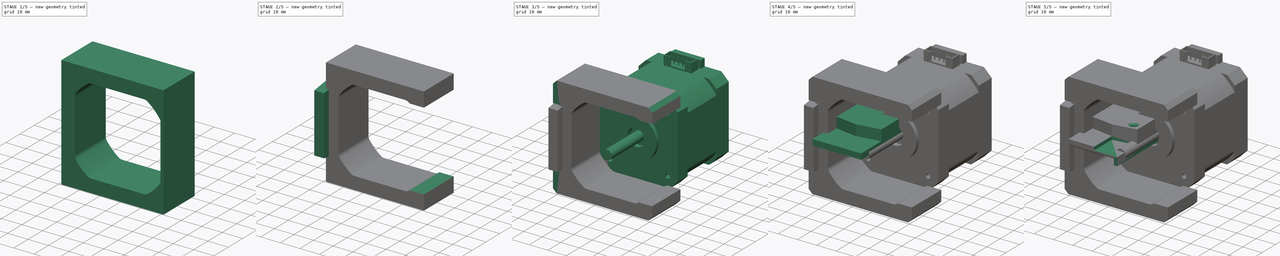
[diagram: build sequence overview — one tinted view per stage of 5, left to right]
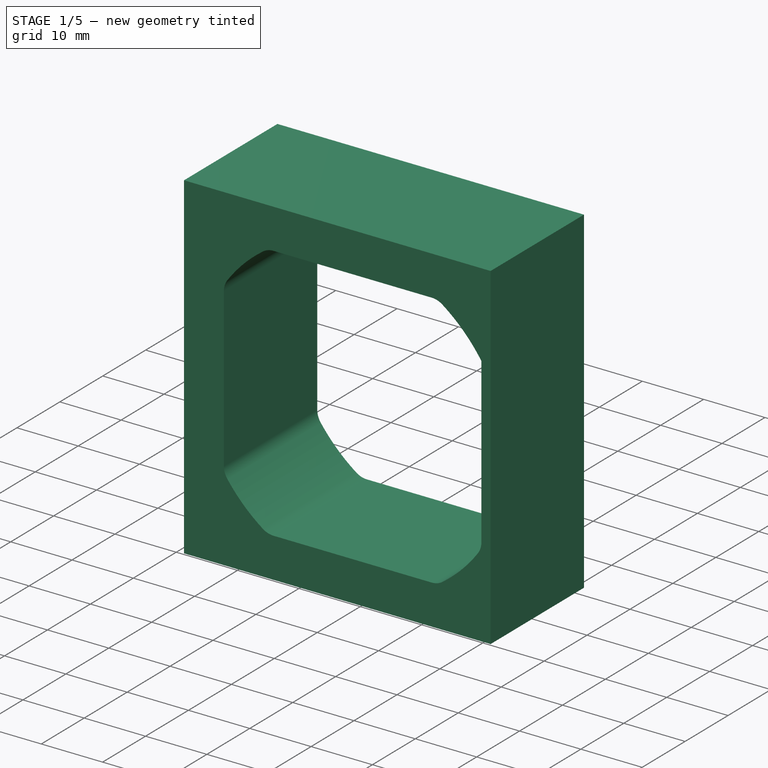
[diagram: stage 1 of 5 — iso view after this stage's code; geometry added in this stage tinted green]
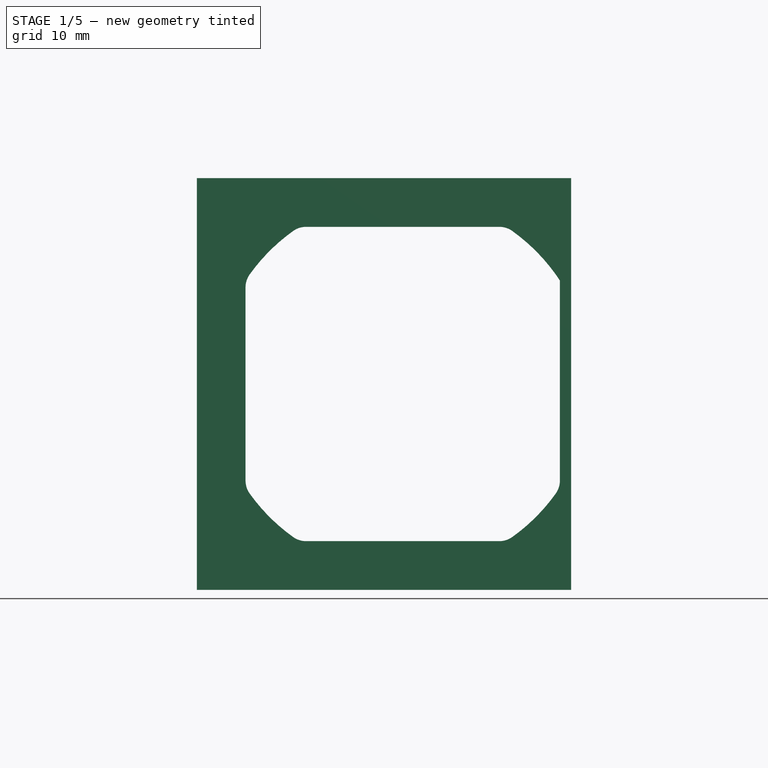
[diagram: stage 1 of 5 — front view after this stage's code; geometry added in this stage tinted green]
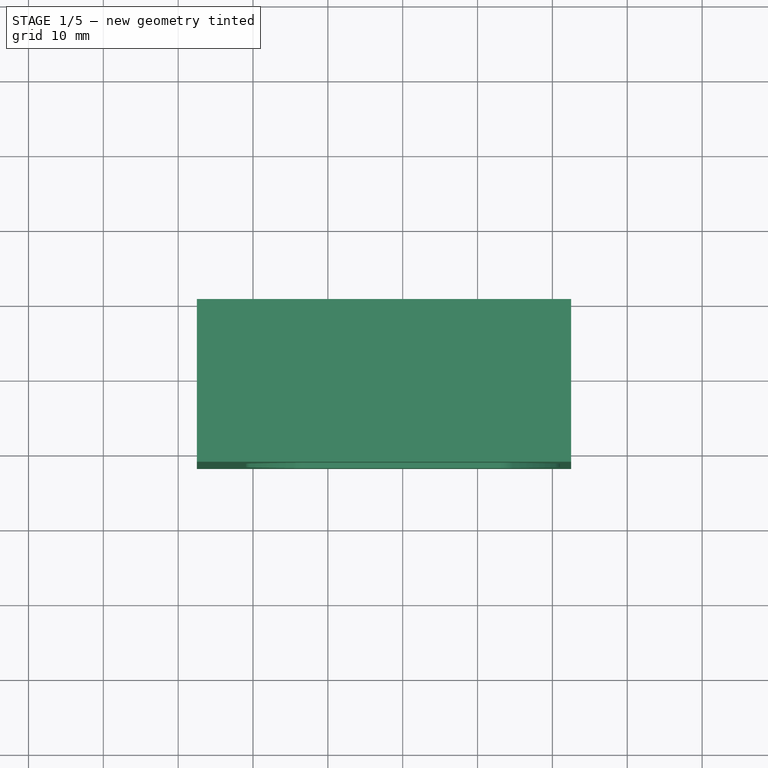
[diagram: stage 1 of 5 — top view after this stage's code; geometry added in this stage tinted green]
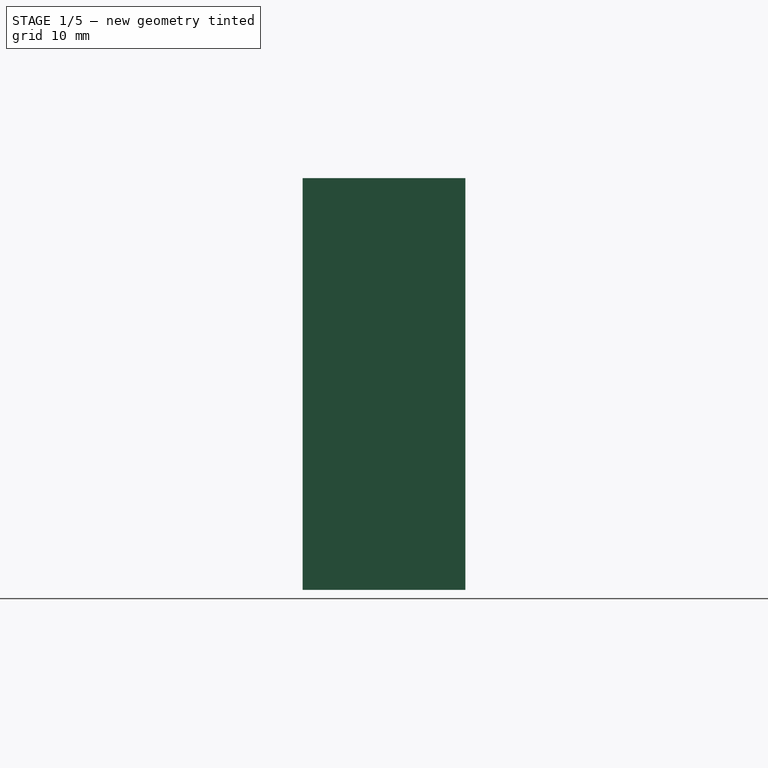
[diagram: stage 1 of 5 — right view after this stage's code; geometry added in this stage tinted green]
FCSTD DOCUMENT  (FreeCAD 1.1R44555 (Git))
Label: ender 3 v1 direct drive kusba
License: All rights reserved
LicenseURL: https://en.wikipedia.org/wiki/All_rights_reserved
objects: Sketcher::SketchObject×10, PartDesign::Pad×7, PartDesign::Pocket×5, Part::FeaturePython×5, PartDesign::Chamfer×4, Part::Feature×3, PartDesign::ShapeBinder×2, PartDesign::Body×2, App::Point×2, Part::Box×2, PartDesign::SubShapeBinder×2, App::DocumentObjectGroup×1
note: 84 computed .brp shape members not serialized (recipe doc carries the construction recipe); baked Part::Feature solids carry a one-line shape summary decoded from their .brp

FEATURE [App::DocumentObjectGroup] GrExplode_Slice  label="Exploded Slice"
  Group = -> [Slice_child0,Slice_child1]
FEATURE [Part::Feature] Part__Feature001  label="SimpleBed001"
  Placement = pos=(-27.5,-1.975,6.1e-15) rot=(0.57735,0.57735,-0.57735;4.18879rad)
  shape: bbox 11.5 x 25.23 x 60 mm, 29 faces (baked)
FEATURE [PartDesign::SubShapeBinder] Binder001
  BindCopyOnChange = 0
  BindMode = 0
  ClaimChildren = false
  Context = -> Body004 [Binder001.]
  Fuse = false
  MakeFace = true
  OffsetFill = false
  OffsetIntersection = false
  OffsetJoinType = 0
  OffsetOpenResult = false
  PartialLoad = false
  Placement = pos=(10,-0.025,0) rot=(0,0,1;0rad)
  Refine = true
  Relative = true
  Support = -> [Part__Feature001[Face1]]
  _Version = 2
FEATURE [Sketcher::SketchObject] Sketch002
  ArcFitTolerance = 1e-06
  ExternalTypes = [0,0]
  FullyConstrained = false
  MakeInternals = false
  MapMode = 5
  Placement = pos=(-31,-6.9e-15,3.4e-15) rot=(0.57735,-0.57735,-0.57735;2.0944rad)
  sketch-geometry (8):
    g0: LineSegment StartX=0.665674 StartY=14.6086 StartZ=0 EndX=0.665674 EndY=9.04659 EndZ=0
    g1: LineSegment StartX=0.665674 StartY=9.04659 StartZ=0 EndX=7.47092 EndY=9.04659 EndZ=0
    g2: LineSegment StartX=7.47092 StartY=9.04659 StartZ=0 EndX=7.47092 EndY=14.6086 EndZ=0
    g3: LineSegment StartX=7.47092 StartY=14.6086 StartZ=0 EndX=0.665674 EndY=14.6086 EndZ=0
    g4: LineSegment StartX=0.73111 StartY=-9.07892 StartZ=0 EndX=0.73111 EndY=-14.51 EndZ=0
    g5: LineSegment StartX=0.73111 StartY=-14.51 StartZ=0 EndX=7.47092 EndY=-14.51 EndZ=0
    g6: LineSegment StartX=7.47092 StartY=-14.51 StartZ=0 EndX=7.47092 EndY=-9.07892 EndZ=0
    g7: LineSegment StartX=7.47092 StartY=-9.07892 StartZ=0 EndX=0.73111 EndY=-9.07892 EndZ=0
  constraints (16):
    c: Coincident(g0,g1)
    c: Coincident(g1,g2)
    c: Coincident(g2,g3)
    c: Coincident(g3,g0)
    c: Vertical(g0)
    c: Vertical(g2)
    c: Horizontal(g1)
    c: Horizontal(g3)
    c: Coincident(g4,g5)
    c: Coincident(g5,g6)
    c: Coincident(g6,g7)
    c: Coincident(g7,g4)
    c: Vertical(g4)
    c: Vertical(g6)
    c: Horizontal(g5)
    c: Horizontal(g7)
FEATURE [Part::Feature] Part__Feature002  label="NEMA17 42-001"
  shape: bbox 42 x 63.75 x 47.08 mm, 266 faces (baked)
FEATURE [Part::Box] Box001  label="Cube001"
  AttacherType = Attacher::AttachEngine3D
  Height = 45
  Length = 45
  Placement = pos=(-22.1,-25.5,-22.7) rot=(0,0,1;0rad)
  Width = 45
FEATURE [Part::FeaturePython] Slice001  # WARN: FeaturePython — macro-defined, semantics opaque (R4)
  Base = -> Part__Feature002
  Mode = 1
  Tolerance = 0
  Tools = -> [Box001]
FEATURE [Part::FeaturePython] Slice_child001  label="Slice.001"  # WARN: FeaturePython — macro-defined, semantics opaque (R4)
  Base = -> Slice001
  FilterType = 1
  Invert = false
  OverrideMaxVal = 0
  WindowFrom = 80
  WindowTo = 100
  items = 0
FEATURE [PartDesign::SubShapeBinder] Binder
  BindCopyOnChange = 0
  BindMode = 0
  ClaimChildren = false
  Context = -> Body004 [Binder.]
  Fuse = false
  MakeFace = true
  OffsetFill = false
  OffsetIntersection = false
  OffsetJoinType = 0
  OffsetOpenResult = false
  PartialLoad = false
  Refine = true
  Relative = true
  Support = -> [Slice_child001[Face48]]
  _Version = 2
FEATURE [App::Point] Origin008
  Role = Origin
FEATURE [Sketcher::SketchObject] Sketch036
  ArcFitTolerance = 1e-06
  AttachmentSupport = -> [Origin009]
  ExternalTypes = [0,0,0,0,0,0,0,0,0,0,0,0,0,0,0,0]
  FullyConstrained = true
  MakeInternals = false
  MapMode = 5
  Placement = pos=(0,0,0) rot=(1,0,0;1.5708rad)
  sketch-geometry (4):
    g0: LineSegment StartX=-27.5 StartY=27.5 StartZ=0 EndX=-27.5 EndY=-27.5 EndZ=0
    g1: LineSegment StartX=-27.5 StartY=-27.5 StartZ=0 EndX=22.5 EndY=-27.5 EndZ=0
    g2: LineSegment StartX=22.5 StartY=-27.5 StartZ=0 EndX=22.5 EndY=27.5 EndZ=0
    g3: LineSegment StartX=22.5 StartY=27.5 StartZ=0 EndX=-27.5 EndY=27.5 EndZ=0
  constraints (11):
    c: Coincident(g0,g1)
    c: Coincident(g1,g2)
    c: Coincident(g2,g3)
    c: Coincident(g3,g0)
    c: Vertical(g2)
    c: Horizontal(g1)
    c: Horizontal(g3)
    c: DistanceX(g1,g1) = 50
    c: DistanceY(g2,g2) = 55
    c: Symmetric(g0,g0,g-1)
    c: DistanceX(g0,g-1) = 27.5
FEATURE [PartDesign::Pad] Pad011
  Direction = (0,-1,2e-16)
  Length = 21.75
  Length2 = 10
  Profile = -> Sketch036
  ReferenceAxis = -> Sketch036 [N_Axis]
  Refine = true
  SideType = 0
  Suppressed = false
  Type = 0
  Type2 = 0
FEATURE [PartDesign::Pocket] Pocket009
  BaseFeature = -> Pad011
  Direction = (0,-1,0)
  Length = 5
  Length2 = 5
  Profile = -> Binder
  Refine = true
  SideType = 0
  Suppressed = false
  Type = 1
  Type2 = 0
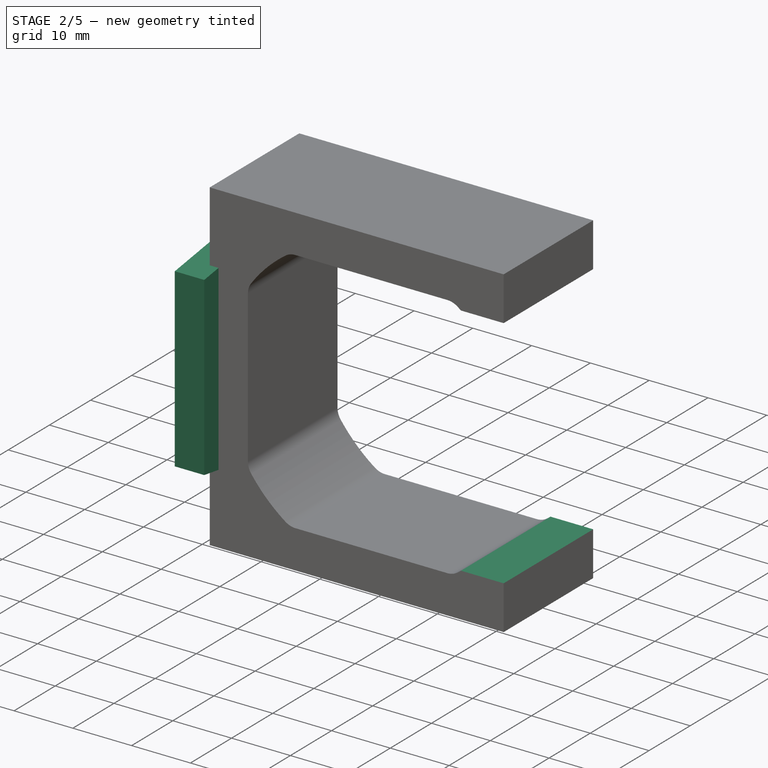
[diagram: stage 2 of 5 — iso view after this stage's code; geometry added in this stage tinted green]
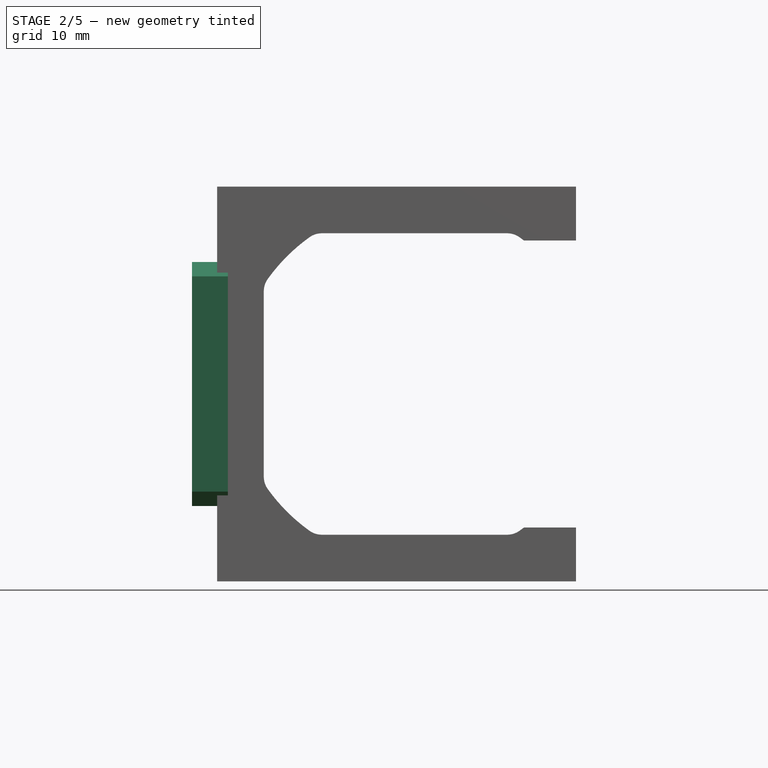
[diagram: stage 2 of 5 — front view after this stage's code; geometry added in this stage tinted green]
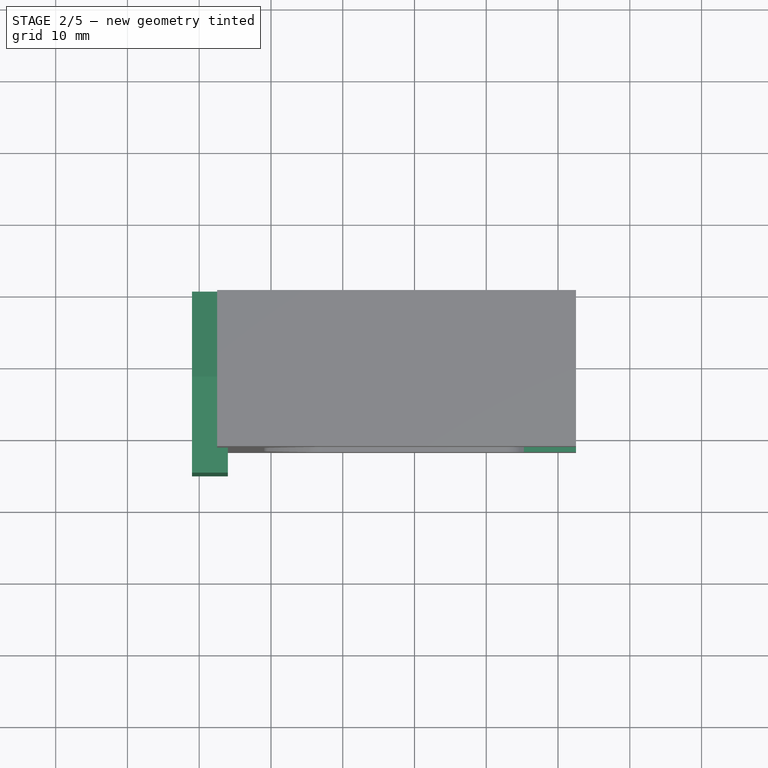
[diagram: stage 2 of 5 — top view after this stage's code; geometry added in this stage tinted green]
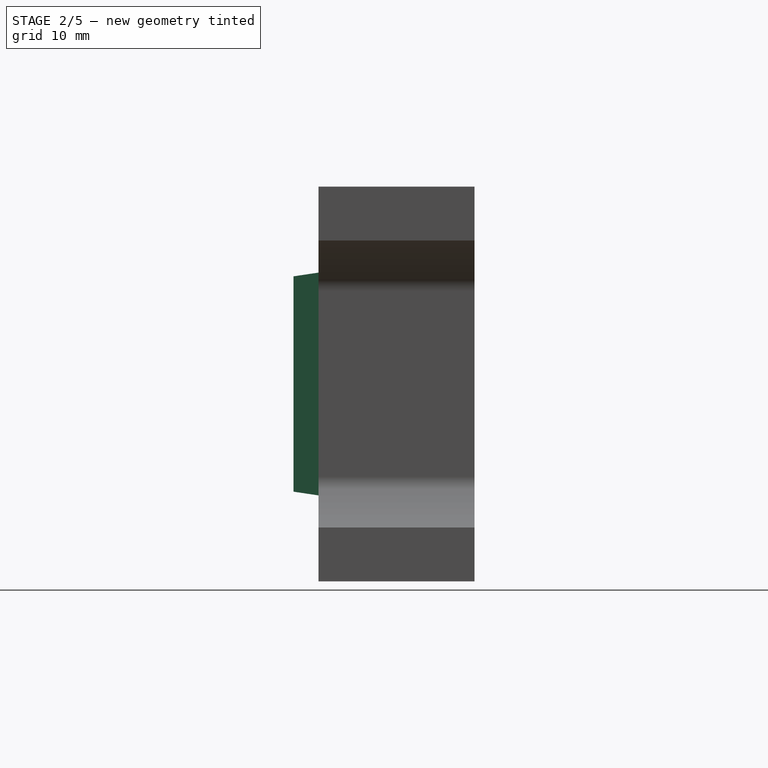
[diagram: stage 2 of 5 — right view after this stage's code; geometry added in this stage tinted green]
FEATURE [Sketcher::SketchObject] Sketch001
  ArcFitTolerance = 1e-06
  AttachmentSupport = -> [Pocket009]
  ExternalGeometry = -> [Pocket009]
  ExternalTypes = [0,0]
  FullyConstrained = false
  MakeInternals = false
  MapMode = 5
  Placement = pos=(0,0,0) rot=(0,0.707107,0.707107;3.14159rad)
  sketch-geometry (4):
    g0: LineSegment StartX=-22.5 StartY=20 StartZ=0 EndX=-22.5 EndY=-20 EndZ=0
    g1: LineSegment StartX=-22.5 StartY=-20 StartZ=0 EndX=-12.719 EndY=-20 EndZ=0
    g2: LineSegment StartX=-12.719 StartY=-20 StartZ=0 EndX=-12.719 EndY=20 EndZ=0
    g3: LineSegment StartX=-12.719 StartY=20 StartZ=0 EndX=-22.5 EndY=20 EndZ=0
  constraints (11):
    c: Coincident(g0,g1)
    c: Coincident(g1,g2)
    c: Coincident(g2,g3)
    c: Coincident(g3,g0)
    c: Vertical(g0)
    c: Vertical(g2)
    c: Horizontal(g1)
    c: Horizontal(g3)
    c: PointOnObject(g0,g-3)
    c: DistanceY(g0,g-3) = 7.5
    c: DistanceY(g-3,g0) = 7.5
FEATURE [PartDesign::Pocket] Pocket010
  BaseFeature = -> Pocket009
  Direction = (0,-1,2e-16)
  Length = 5
  Length2 = 5
  Profile = -> Sketch001
  ReferenceAxis = -> Sketch001 [N_Axis]
  Refine = true
  SideType = 0
  Suppressed = false
  Type = 1
  Type2 = 0
FEATURE [Sketcher::SketchObject] Sketch003
  ArcFitTolerance = 1e-06
  ExternalGeometry = -> [Binder001]
  ExternalTypes = [0,0]
  FullyConstrained = true
  MakeInternals = false
  MapMode = 5
  Placement = pos=(-31,0,0) rot=(0.57735,-0.57735,-0.57735;2.0944rad)
  sketch-geometry (2):
    g0: Circle CenterX=4.18 CenterY=11.75 CenterZ=0 NormalX=0 NormalY=0 NormalZ=1 AngleXU=0 Radius=1.5
    g1: Circle CenterX=4.18 CenterY=-11.75 CenterZ=0 NormalX=0 NormalY=0 NormalZ=1 AngleXU=0 Radius=1.5
  constraints (4):
    c: Coincident(g0,g-3)
    c: Coincident(g1,g-4)
    c: Equal(g1,g0)
    c: Diameter(g0) = 3
FEATURE [PartDesign::Pad] Pad012
  BaseFeature = -> Pocket010
  Direction = (-1,0,0)
  Length = 5
  Length2 = 10
  Profile = -> Binder001
  Refine = true
  SideType = 0
  Suppressed = false
  Type = 0
  Type2 = 0
FEATURE [PartDesign::Pad] Pad013
  BaseFeature = -> Pad012
  Direction = (-1,1e-16,-1e-16)
  Length = 10
  Length2 = 10
  Profile = -> Sketch002
  ReferenceAxis = -> Sketch002 [N_Axis]
  Refine = true
  Reversed = true
  SideType = 0
  Suppressed = false
  Type = 3
  Type2 = 0
  UpToFace = -> Pad012 [Face32]
FEATURE [PartDesign::Pocket] Pocket011
  BaseFeature = -> Pad013
  Direction = (1,0,0)
  Length = 9.5
  Length2 = 5
  Profile = -> Sketch003
  ReferenceAxis = -> Sketch003 [N_Axis]
  SideType = 0
  Suppressed = false
  Type = 0
  Type2 = 0
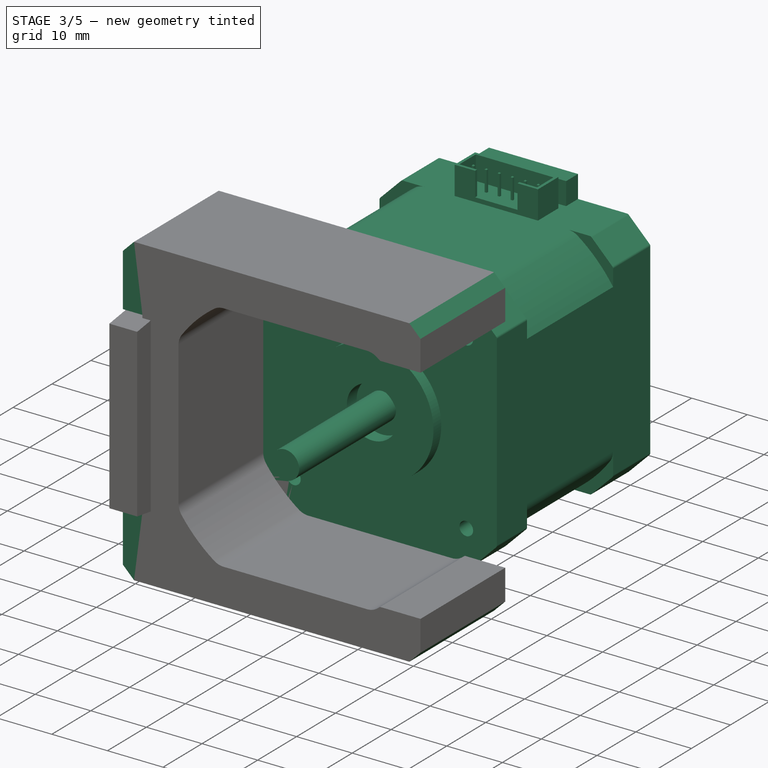
[diagram: stage 3 of 5 — iso view after this stage's code; geometry added in this stage tinted green]
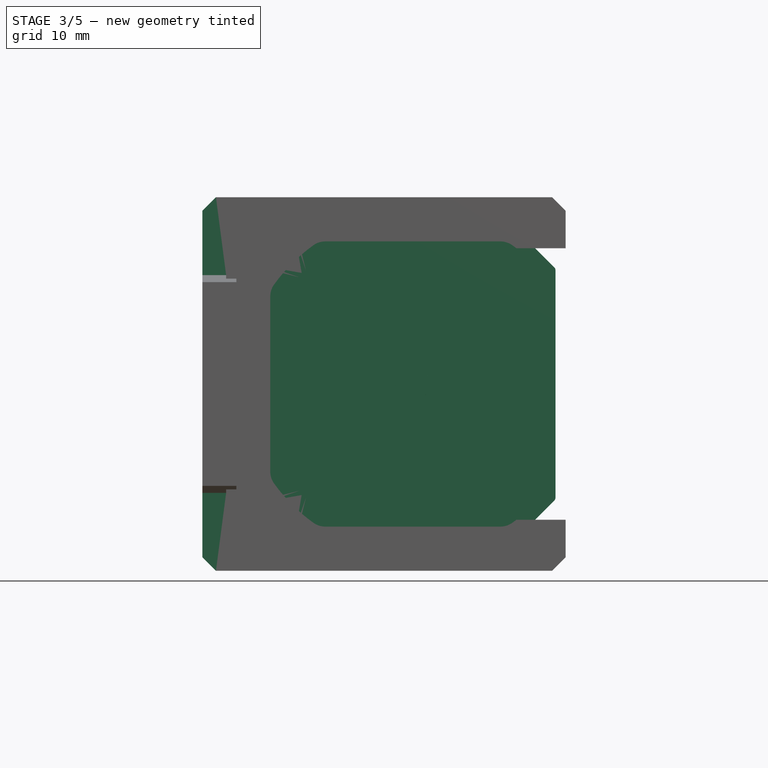
[diagram: stage 3 of 5 — front view after this stage's code; geometry added in this stage tinted green]
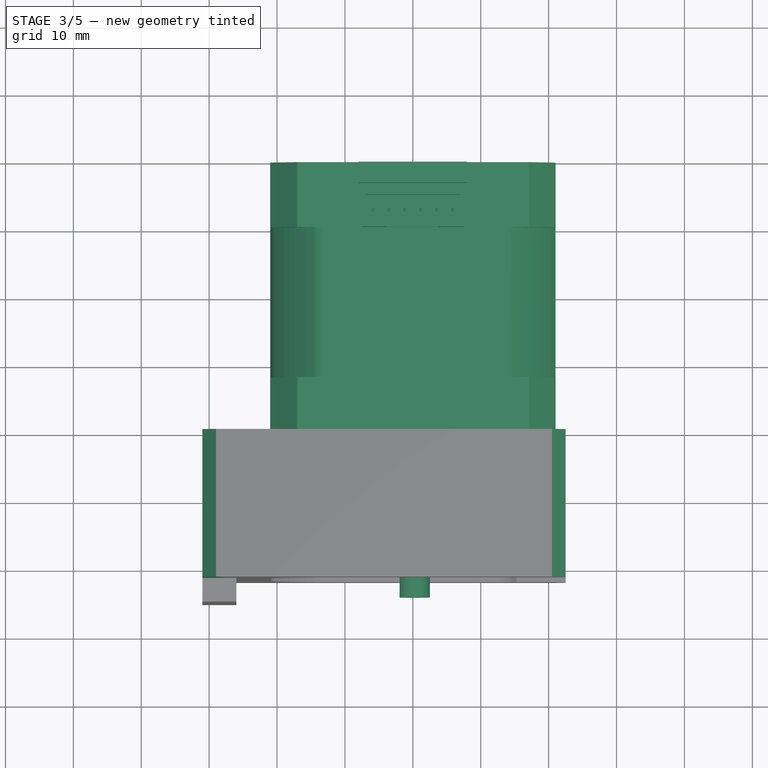
[diagram: stage 3 of 5 — top view after this stage's code; geometry added in this stage tinted green]
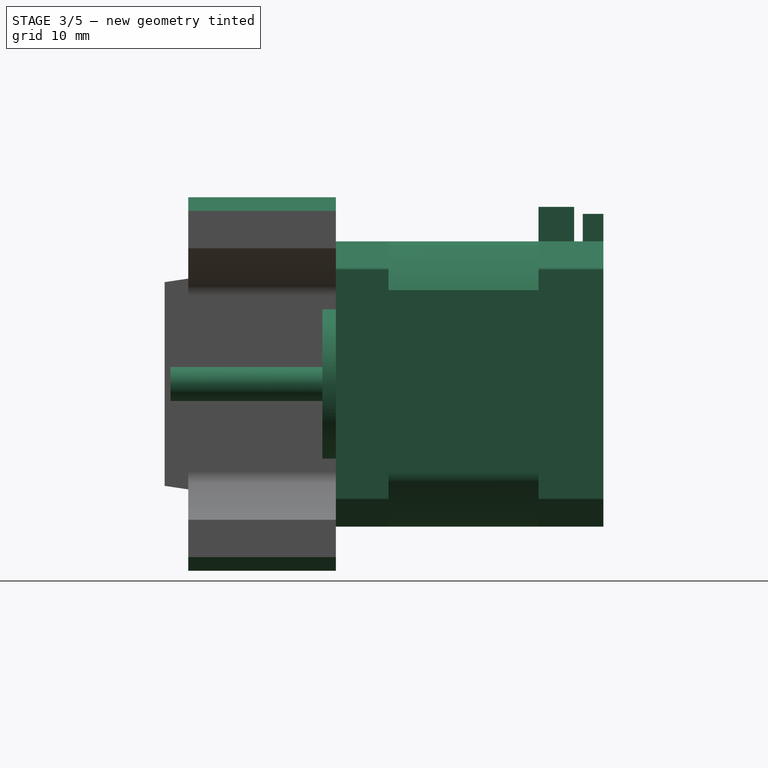
[diagram: stage 3 of 5 — right view after this stage's code; geometry added in this stage tinted green]
FEATURE [PartDesign::Body] Body  label="SimpleBed"
  AllowCompound = true
  Group = -> [ShapeBinder,Sketch025,Pad004,Sketch026,Pad005,ShapeBinder001,Sketch027,Pocket005,Sketch028,Pad006,Sketch029,Pocket006,Chamfer003,Chamfer004]
  Origin = -> Origin
  Placement = pos=(-1e-15,-3,0) rot=(-0.707107,0.707107,0;3.14159rad)
  Tip = -> Chamfer004
FEATURE [App::Point] Origin006  label="Origin"
  Role = Origin
FEATURE [Part::Feature] Part__Feature  label="NEMA17 42-40"
  shape: bbox 42 x 63.75 x 47.08 mm, 266 faces (baked)
FEATURE [Part::Box] Box  label="Cube"
  AttacherType = Attacher::AttachEngine3D
  Height = 45
  Length = 45
  Placement = pos=(-22.1,-25.5,-22.7) rot=(0,0,1;0rad)
  Width = 45
FEATURE [Part::FeaturePython] Slice  # WARN: FeaturePython — macro-defined, semantics opaque (R4)
  Base = -> Part__Feature
  Mode = 1
  Tolerance = 0
  Tools = -> [Box]
FEATURE [PartDesign::Chamfer] Chamfer008
  Angle = 45
  Base = -> Pocket011 [Edge82,Edge83]
  BaseFeature = -> Pocket011
  ChamferType = 0
  FlipDirection = false
  Size = 1
  Size2 = 1
  SupportTransform = false
  Suppressed = false
  UseAllEdges = false
FEATURE [Sketcher::SketchObject] Sketch037
  ArcFitTolerance = 1e-06
  AttachmentSupport = -> [Chamfer008]
  ExternalGeometry = -> [Chamfer008]
  ExternalTypes = [0,0,0,0,0,0]
  FullyConstrained = true
  MakeInternals = false
  MapMode = 5
  Placement = pos=(-27.5,0,0) rot=(0.57735,-0.57735,-0.57735;2.0944rad)
  sketch-geometry (10):
    g0: LineSegment StartX=-7.1e-15 StartY=27.5 StartZ=0 EndX=-7.1e-15 EndY=15.507 EndZ=0
    g1: LineSegment StartX=21.75 StartY=16.027 StartZ=0 EndX=21.75 EndY=27.5 EndZ=0
    g2: LineSegment StartX=21.75 StartY=27.5 StartZ=0 EndX=-7.1e-15 EndY=27.5 EndZ=0
    g3: LineSegment StartX=6.1e-15 StartY=-27.5 StartZ=0 EndX=21.75 EndY=-27.5 EndZ=0
    g4: LineSegment StartX=21.75 StartY=-27.5 StartZ=0 EndX=21.75 EndY=-16.027 EndZ=0
    g5: LineSegment StartX=6.1e-15 StartY=-15.507 StartZ=0 EndX=6.1e-15 EndY=-27.5 EndZ=0
    g6: LineSegment StartX=-7.1e-15 StartY=15.507 StartZ=0 EndX=11.88 EndY=17.5 EndZ=0
    g7: LineSegment StartX=11.88 StartY=17.5 StartZ=0 EndX=21.75 EndY=16.027 EndZ=0
    g8: LineSegment StartX=6.1e-15 StartY=-15.507 StartZ=0 EndX=11.88 EndY=-17.5 EndZ=0
    g9: LineSegment StartX=11.88 StartY=-17.5 StartZ=0 EndX=21.75 EndY=-16.027 EndZ=0
  constraints (26):
    c: Coincident(g1,g2)
    c: Coincident(g2,g0)
    c: Vertical(g0)
    c: Vertical(g1)
    c: Coincident(g0,g-3)
    c: Coincident(g1,g-3)
    c: Coincident(g3,g4)
    c: Coincident(g5,g3)
    c: Vertical(g4)
    c: Vertical(g5)
    c: Coincident(g3,g-4)
    c: Coincident(g-4,g3)
    c: Distance(g5,g-6) = 0.5
    c: Distance(g4,g-5) = 0.5
    c: Distance(g1,g-7) = 0.5
    c: Distance(g0,g-8) = 0.5
    c: Coincident(g0,g6)
    c: Coincident(g6,g7)
    c: Coincident(g7,g1)
    c: Coincident(g8,g9)
    c: Coincident(g9,g4)
    c: Vertical(g8,g-6)
    c: Vertical(g-8,g6)
    c: DistanceY(g-8,g6) = 0.5
    c: DistanceY(g8,g-6) = 0.5
    c: Coincident(g5,g8)
FEATURE [PartDesign::Pad] Pad014
  BaseFeature = -> Chamfer008
  Direction = (-1,0,0)
  Length = 10
  Length2 = 10
  Profile = -> Sketch037
  ReferenceAxis = -> Sketch037 [N_Axis]
  Refine = true
  SideType = 0
  Suppressed = false
  Type = 3
  Type2 = 0
  UpToFace = -> Chamfer008 [Face1]
FEATURE [PartDesign::Chamfer] Chamfer009
  Angle = 45
  Base = -> Pad014 [Edge56,Edge51,Edge110,Edge76]
  BaseFeature = -> Pad014
  ChamferType = 0
  FlipDirection = false
  Refine = true
  Size = 2
  Size2 = 1
  SupportTransform = false
  Suppressed = false
  UseAllEdges = false
FEATURE [PartDesign::Body] Body004  label="Ender 3 Stepper Mount"
  AllowCompound = true
  Group = -> [Sketch036,Binder,Pad011,Pocket009,Sketch001,Pocket010,Binder001,Pad012,Sketch002,Sketch003,Pad013,Pocket011,Chamfer008,Sketch037,Pad014,Chamfer009]
  Origin = -> Origin009
  Tip = -> Chamfer009
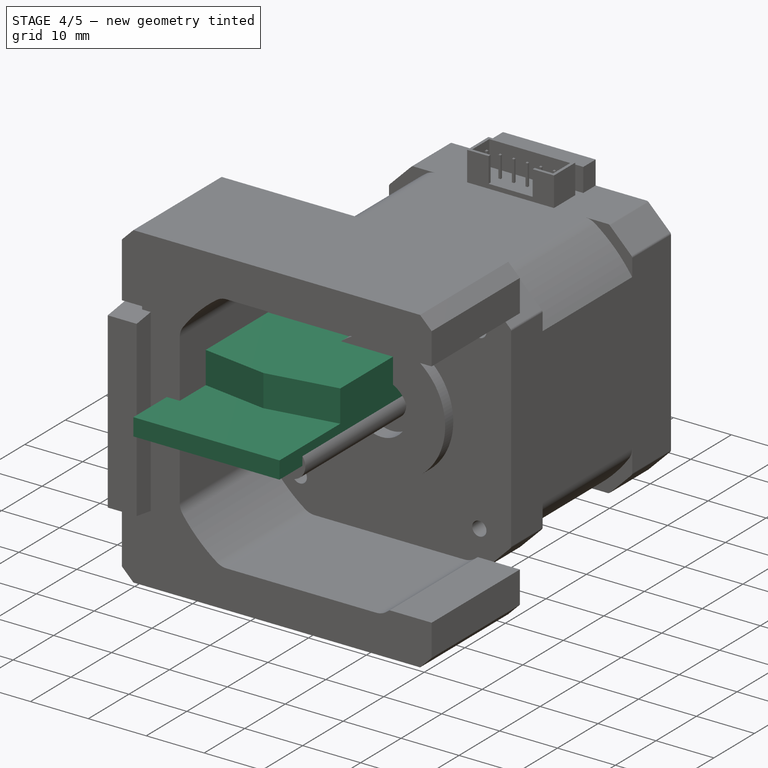
[diagram: stage 4 of 5 — iso view after this stage's code; geometry added in this stage tinted green]
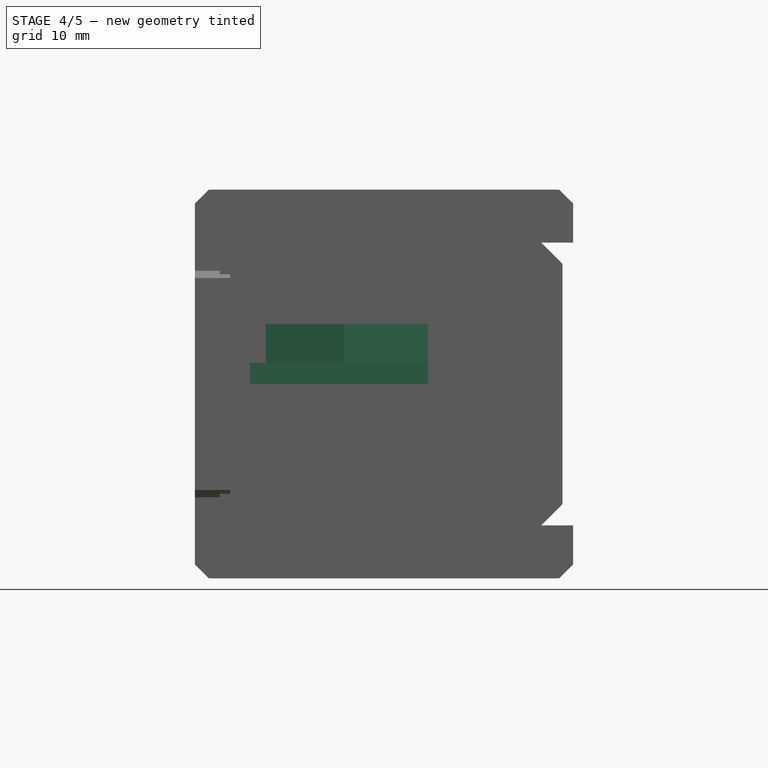
[diagram: stage 4 of 5 — front view after this stage's code; geometry added in this stage tinted green]
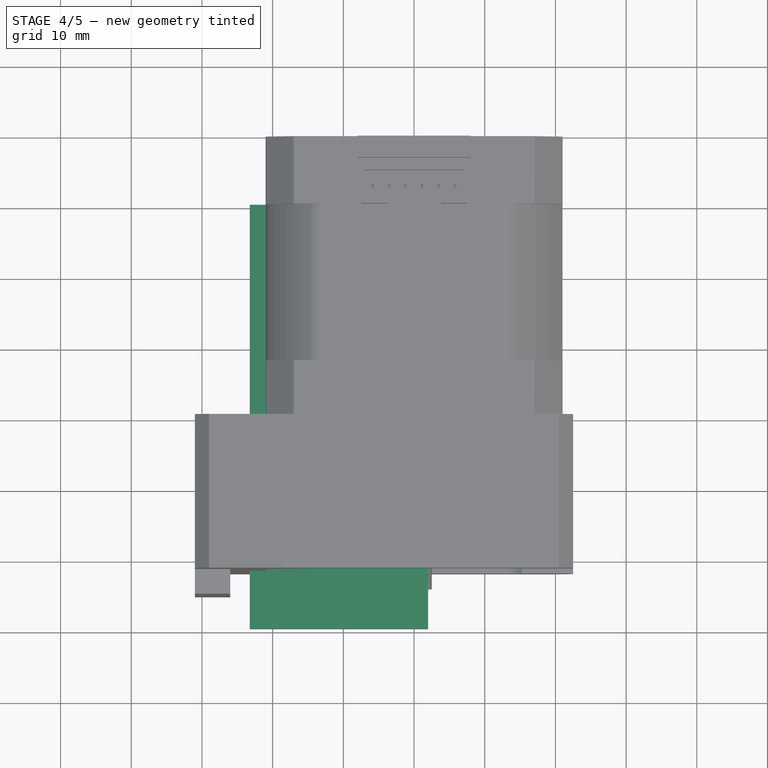
[diagram: stage 4 of 5 — top view after this stage's code; geometry added in this stage tinted green]
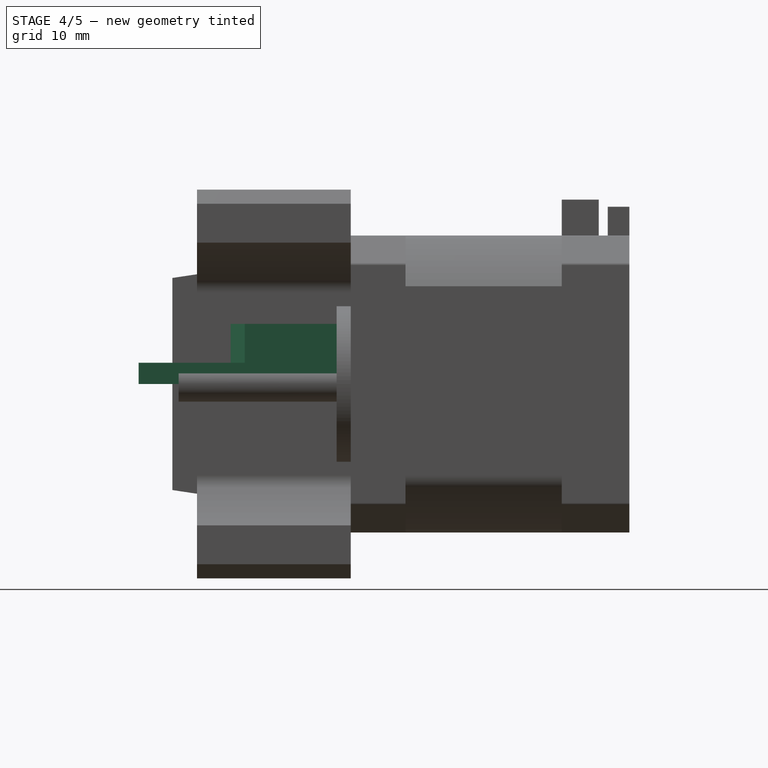
[diagram: stage 4 of 5 — right view after this stage's code; geometry added in this stage tinted green]
FEATURE [PartDesign::ShapeBinder] ShapeBinder
  TraceSupport = false
FEATURE [Sketcher::SketchObject] Sketch025
  ArcFitTolerance = 0
  AttachmentSupport = -> [XY_Plane]
  ExternalGeometry = -> [ShapeBinder]
  ExternalTypes = [0]
  FullyConstrained = true
  MakeInternals = false
  MapMode = 5
  sketch-geometry (4):
    g0: LineSegment StartX=-23.231 StartY=30 StartZ=0 EndX=-23.231 EndY=-30 EndZ=0
    g1: LineSegment StartX=-23.231 StartY=-30 StartZ=0 EndX=2 EndY=-30 EndZ=0
    g2: LineSegment StartX=2 StartY=-30 StartZ=0 EndX=2 EndY=30 EndZ=0
    g3: LineSegment StartX=2 StartY=30 StartZ=0 EndX=-23.231 EndY=30 EndZ=0
  constraints (11):
    c: Coincident(g0,g1)
    c: Coincident(g1,g2)
    c: Coincident(g2,g3)
    c: Coincident(g3,g0)
    c: Vertical(g2)
    c: Horizontal(g1)
    c: Horizontal(g3)
    c: DistanceY(g2,g2) = 60
    c: PointOnObject(g-3,g0)
    c: PointOnObject(g-4,g2)
    c: Symmetric(g0,g0,g-1)
FEATURE [PartDesign::Pad] Pad004
  Direction = (0,0,1)
  Length = 3
  Length2 = 10
  Profile = -> Sketch025
  ReferenceAxis = -> Sketch025 [N_Axis]
  SideType = 0
  Suppressed = false
  Type = 0
  Type2 = 0
FEATURE [Sketcher::SketchObject] Sketch026
  ArcFitTolerance = 0
  AttachmentSupport = -> [Pad004]
  ExternalGeometry = -> [ShapeBinder]
  ExternalTypes = [0]
  FullyConstrained = true
  MakeInternals = false
  MapMode = 5
  Placement = pos=(0,0,3) rot=(0,0,1;0rad)
  sketch-geometry (6):
    g0: LineSegment StartX=-23.231 StartY=15 StartZ=0 EndX=-9.88 EndY=17 EndZ=0
    g1: LineSegment StartX=-9.88 StartY=17 StartZ=0 EndX=2 EndY=15 EndZ=0
    g2: LineSegment StartX=2 StartY=15 StartZ=0 EndX=2 EndY=-15 EndZ=0
    g3: LineSegment StartX=2 StartY=-15 StartZ=0 EndX=-9.88 EndY=-17 EndZ=0
    g4: LineSegment StartX=-9.88 StartY=-17 StartZ=0 EndX=-23.231 EndY=-15 EndZ=0
    g5: LineSegment StartX=-23.231 StartY=-15 StartZ=0 EndX=-23.231 EndY=15 EndZ=0
  constraints (12):
    c: Coincident(g-6,g0)
    c: Coincident(g0,g-6)
    c: Coincident(g0,g1)
    c: Coincident(g1,g-5)
    c: Coincident(g1,g2)
    c: Coincident(g2,g-8)
    c: Coincident(g2,g3)
    c: Coincident(g3,g-8)
    c: Coincident(g3,g4)
    c: Coincident(g4,g-7)
    c: Coincident(g4,g5)
    c: Coincident(g5,g0)
FEATURE [PartDesign::Pad] Pad005
  BaseFeature = -> Pad004
  Direction = (0,0,1)
  Length = 5.5
  Length2 = 10
  Profile = -> Sketch026
  ReferenceAxis = -> Sketch026 [N_Axis]
  SideType = 0
  Suppressed = false
  Type = 0
  Type2 = 0
FEATURE [Part::FeaturePython] Slice_child0  label="Slice.0"  # WARN: FeaturePython — macro-defined, semantics opaque (R4)
  Base = -> Slice
  FilterType = 1
  Invert = false
  OverrideMaxVal = 0
  WindowFrom = 80
  WindowTo = 100
  items = 0
FEATURE [Part::FeaturePython] Slice_child1  label="Slice.1"  # WARN: FeaturePython — macro-defined, semantics opaque (R4)
  Base = -> Slice
  FilterType = 1
  Invert = false
  OverrideMaxVal = 0
  WindowFrom = 80
  WindowTo = 100
  items = 1
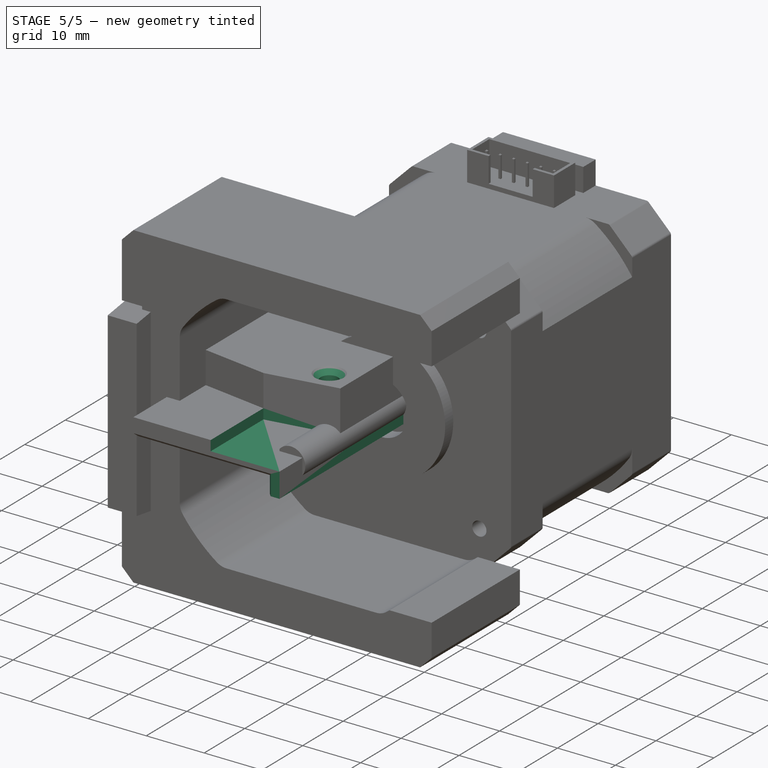
[diagram: stage 5 of 5 — iso view after this stage's code; geometry added in this stage tinted green]
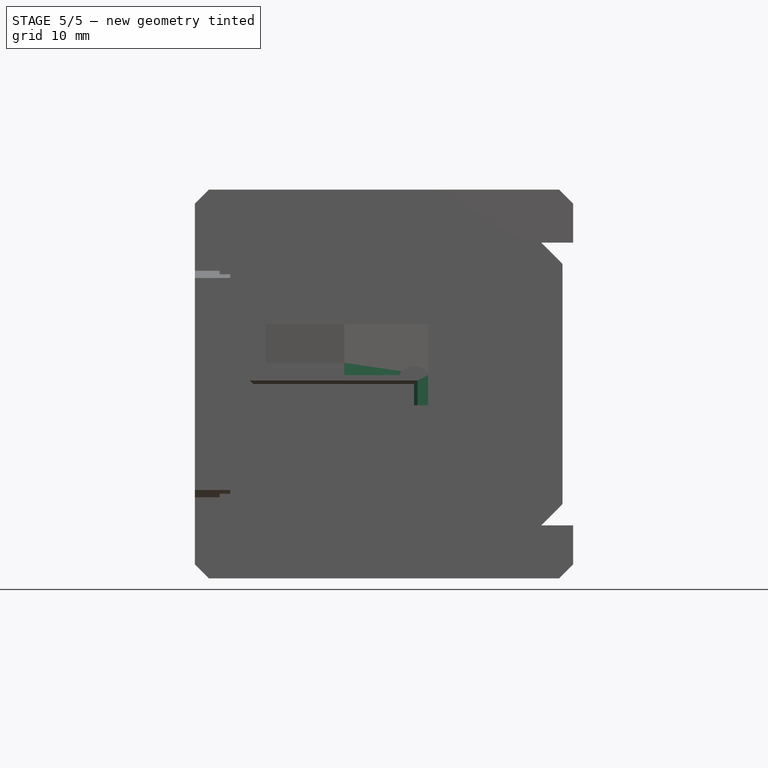
[diagram: stage 5 of 5 — front view after this stage's code; geometry added in this stage tinted green]
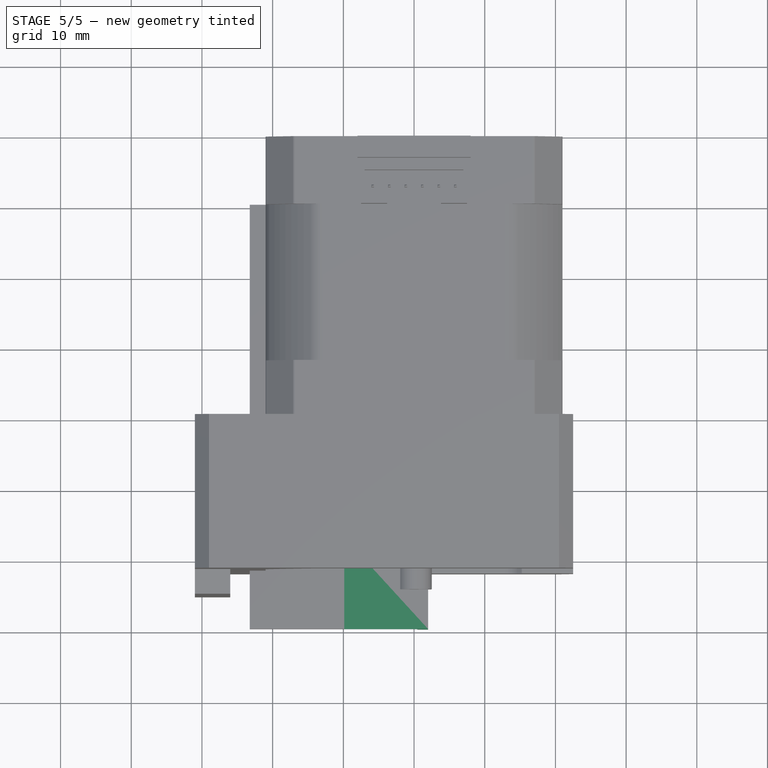
[diagram: stage 5 of 5 — top view after this stage's code; geometry added in this stage tinted green]
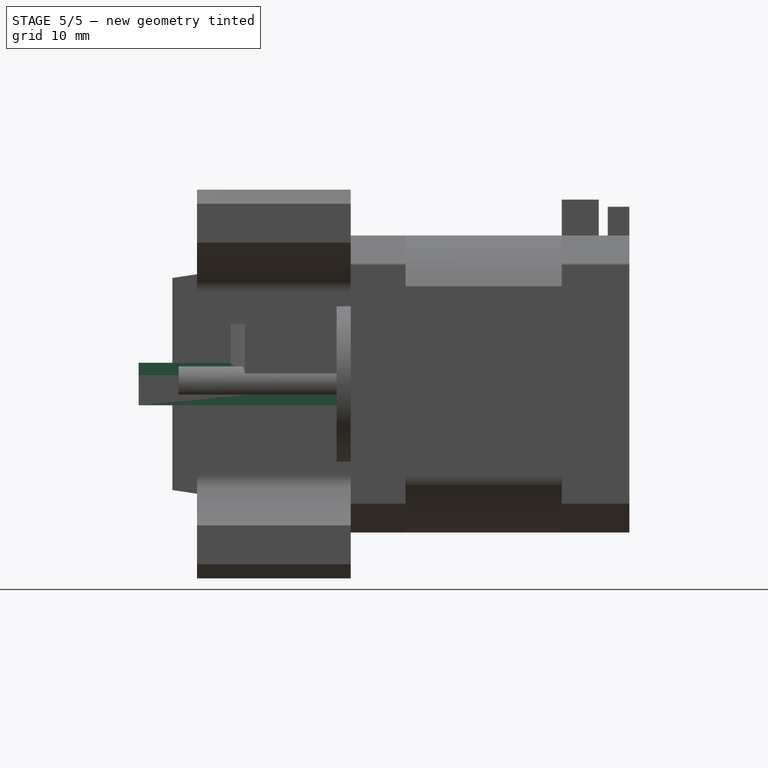
[diagram: stage 5 of 5 — right view after this stage's code; geometry added in this stage tinted green]
FEATURE [PartDesign::ShapeBinder] ShapeBinder001
  TraceSupport = false
FEATURE [Sketcher::SketchObject] Sketch027
  ArcFitTolerance = 0
  AttachmentSupport = -> [Pad005]
  ExternalGeometry = -> [ShapeBinder001]
  ExternalTypes = [0]
  FullyConstrained = false
  MakeInternals = false
  MapMode = 5
  Placement = pos=(0,0,8.5) rot=(0,0,1;0rad)
  sketch-geometry (2):
    g0: Circle CenterX=-2.18 CenterY=11.75 CenterZ=0 NormalX=0 NormalY=0 NormalZ=1 AngleXU=0 Radius=1.5
    g1: Circle CenterX=-2.18 CenterY=-11.75 CenterZ=0 NormalX=0 NormalY=0 NormalZ=1 AngleXU=0 Radius=1.5
  constraints (2):
    c: Diameter(g1) = 3
    c: Diameter(g0) = 3
FEATURE [PartDesign::Pocket] Pocket005
  BaseFeature = -> Pad005
  Direction = (0,0,-1)
  Length = 7.25
  Length2 = 5
  Profile = -> Sketch027
  ReferenceAxis = -> Sketch027 [N_Axis]
  SideType = 0
  Suppressed = false
  Type = 0
  Type2 = 0
FEATURE [Sketcher::SketchObject] Sketch028
  ArcFitTolerance = 0
  AttachmentSupport = -> [Pocket005]
  ExternalGeometry = -> [Pocket005]
  ExternalTypes = [0]
  FullyConstrained = true
  MakeInternals = false
  MapMode = 5
  Placement = pos=(0,0,0) rot=(1,0,0;3.14159rad)
  sketch-geometry (4):
    g0: LineSegment StartX=2 StartY=30 StartZ=0 EndX=0 EndY=30 EndZ=0
    g1: LineSegment StartX=0 StartY=30 StartZ=0 EndX=0 EndY=-30 EndZ=0
    g2: LineSegment StartX=0 StartY=-30 StartZ=0 EndX=2 EndY=-30 EndZ=0
    g3: LineSegment StartX=2 StartY=-30 StartZ=0 EndX=2 EndY=30 EndZ=0
  constraints (10):
    c: Coincident(g0,g1)
    c: Coincident(g1,g2)
    c: Coincident(g2,g3)
    c: Coincident(g3,g0)
    c: Horizontal(g0)
    c: Horizontal(g2)
    c: Vertical(g1)
    c: Coincident(g0,g-3)
    c: PointOnObject(g1,g-2)
    c: Coincident(g2,g-3)
FEATURE [PartDesign::Pad] Pad006
  BaseFeature = -> Pocket005
  Direction = (0,0,-1)
  Length = 3
  Length2 = 10
  Profile = -> Sketch028
  ReferenceAxis = -> Sketch028 [N_Axis]
  Refine = true
  SideType = 0
  Suppressed = false
  Type = 0
  Type2 = 0
FEATURE [Sketcher::SketchObject] Sketch029
  ArcFitTolerance = 0
  AttachmentSupport = -> [Pad006]
  ExternalGeometry = -> [Pad006]
  ExternalTypes = [0]
  FullyConstrained = true
  MakeInternals = false
  MapMode = 5
  Placement = pos=(0,0,3) rot=(0,0,1;0rad)
  sketch-geometry (8):
    g0: LineSegment StartX=2 StartY=30 StartZ=0 EndX=-9.88 EndY=30 EndZ=0
    g1: LineSegment StartX=-9.88 StartY=30 StartZ=0 EndX=-9.88 EndY=17 EndZ=0
    g2: LineSegment StartX=2 StartY=15 StartZ=0 EndX=2 EndY=30 EndZ=0
    g3: LineSegment StartX=2 StartY=-30 StartZ=0 EndX=2 EndY=-15 EndZ=0
    g4: LineSegment StartX=-9.88 StartY=-17 StartZ=0 EndX=-9.88 EndY=-30 EndZ=0
    g5: LineSegment StartX=-9.88 StartY=-30 StartZ=0 EndX=2 EndY=-30 EndZ=0
    g6: LineSegment StartX=-9.88 StartY=17 StartZ=0 EndX=2 EndY=15 EndZ=0
    g7: LineSegment StartX=-9.88 StartY=-17 StartZ=0 EndX=2 EndY=-15 EndZ=0
  constraints (18):
    c: Coincident(g0,g1)
    c: Coincident(g2,g0)
    c: Horizontal(g0)
    c: Vertical(g1)
    c: Coincident(g0,g-6)
    c: Coincident(g4,g5)
    c: Coincident(g5,g3)
    c: Vertical(g4)
    c: Horizontal(g5)
    c: Coincident(g3,g-5)
    c: Coincident(g6,g-8)
    c: Coincident(g6,g-8)
    c: Coincident(g6,g1)
    c: Coincident(g6,g2)
    c: Coincident(g3,g-7)
    c: Coincident(g4,g-7)
    c: Coincident(g7,g4)
    c: Coincident(g7,g3)
FEATURE [PartDesign::Pocket] Pocket006
  BaseFeature = -> Pad006
  Direction = (0,0,-1)
  Length = 1.75
  Length2 = 5
  Profile = -> Sketch029
  ReferenceAxis = -> Sketch029 [N_Axis]
  Refine = true
  SideType = 0
  Suppressed = false
  Type = 0
  Type2 = 0
FEATURE [PartDesign::Chamfer] Chamfer003
  Angle = 45
  Base = -> Pocket006 [Edge10,Edge12,Edge1,Edge4,Edge3]
  BaseFeature = -> Pocket006
  ChamferType = 0
  FlipDirection = false
  Size = 0.5
  Size2 = 1
  SupportTransform = false
  Suppressed = false
  UseAllEdges = false
FEATURE [PartDesign::Chamfer] Chamfer004
  Angle = 45
  Base = -> Chamfer003 [Edge57,Edge58]
  BaseFeature = -> Chamfer003
  ChamferType = 0
  FlipDirection = false
  Size = 1
  Size2 = 1
  SupportTransform = false
  Suppressed = false
  UseAllEdges = false
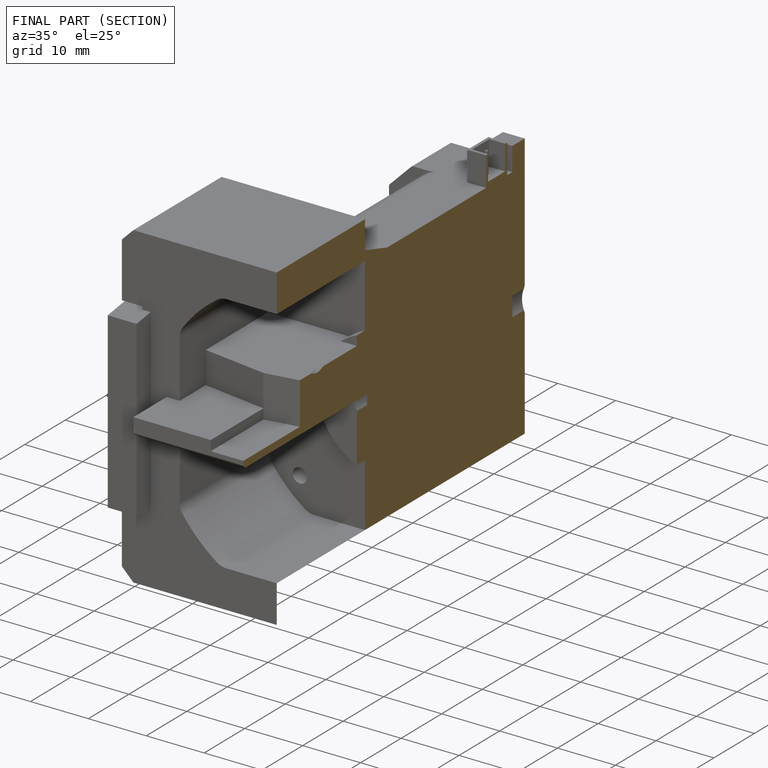
[diagram: finished part — half-section view (interior)]
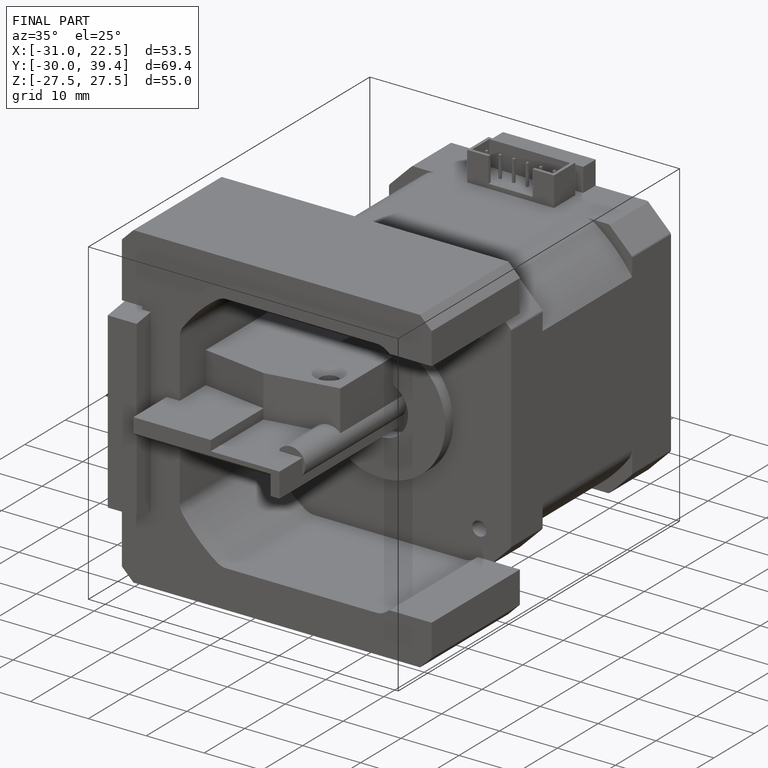
[diagram: finished part — iso view with bounding-box wireframe]
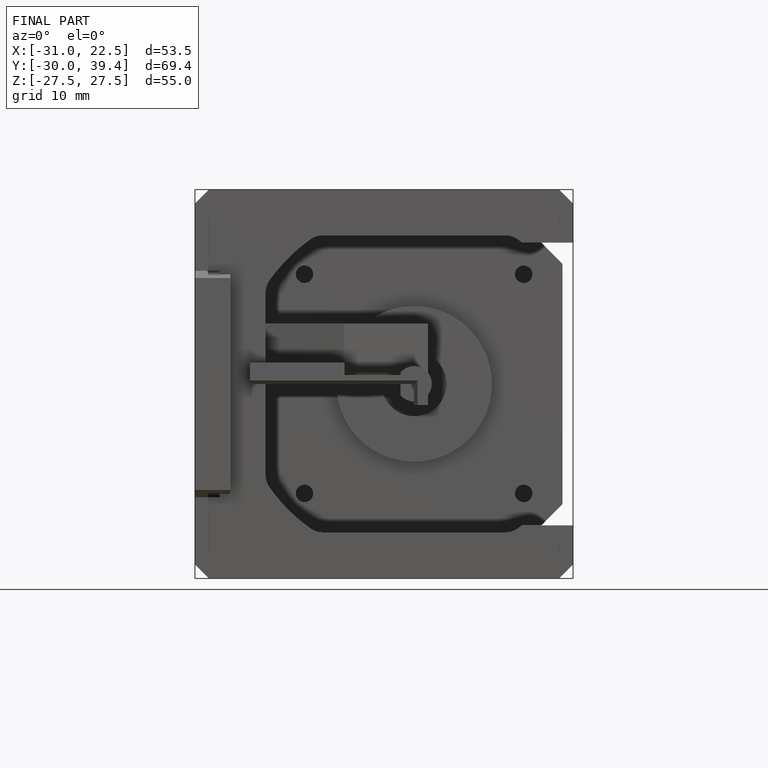
[diagram: finished part — front view with bounding-box wireframe]
